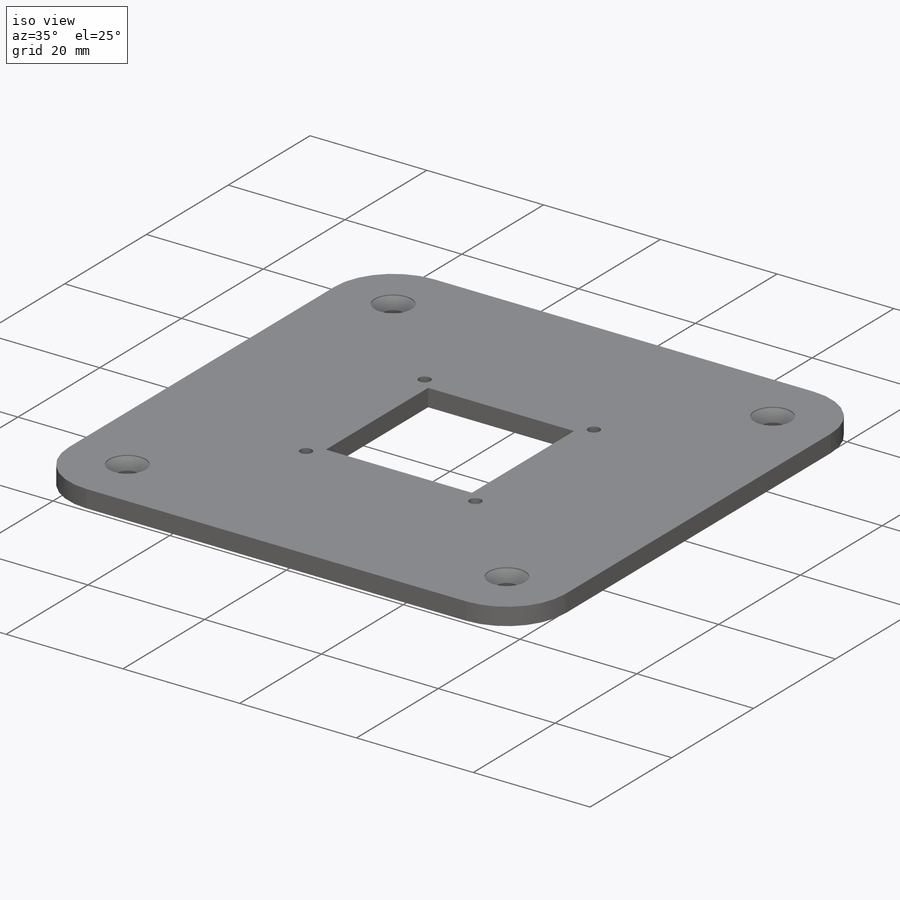
[diagram: iso view]
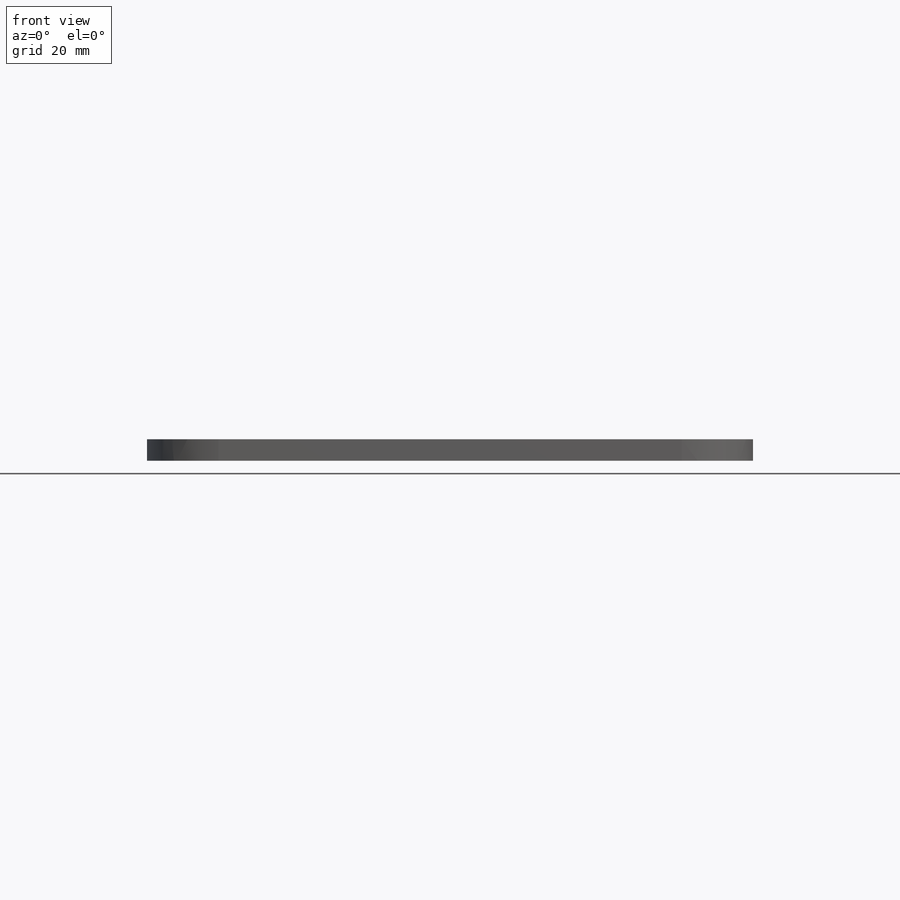
[diagram: front view]
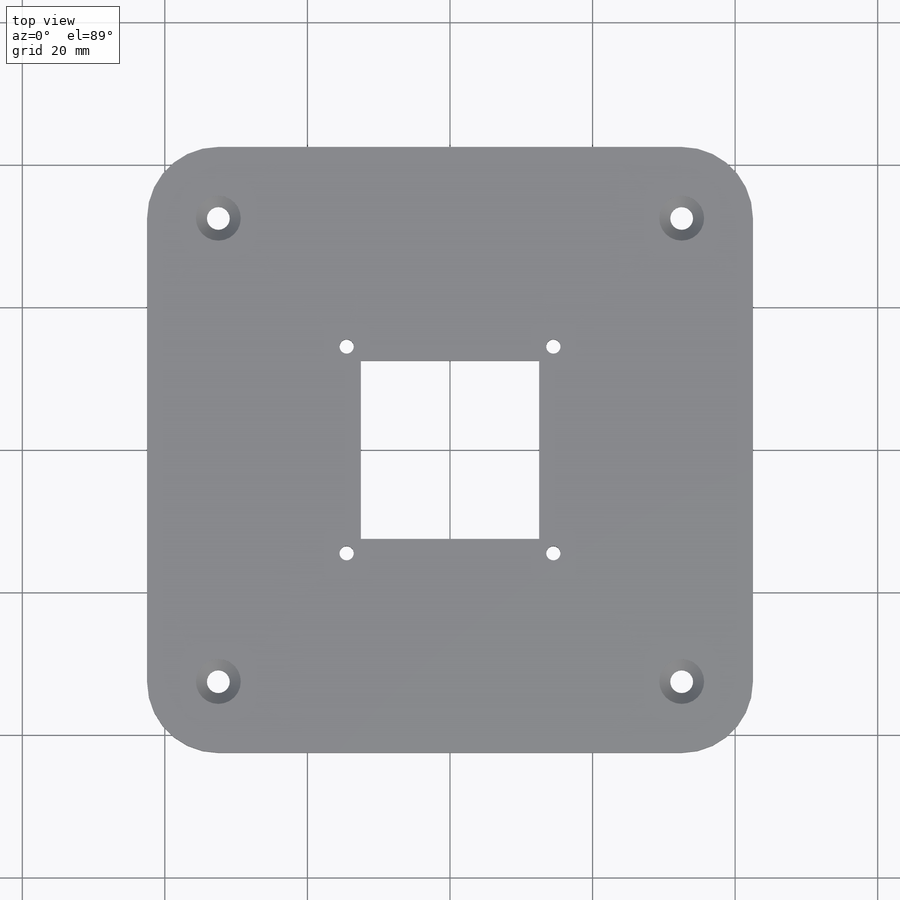
[diagram: top view]
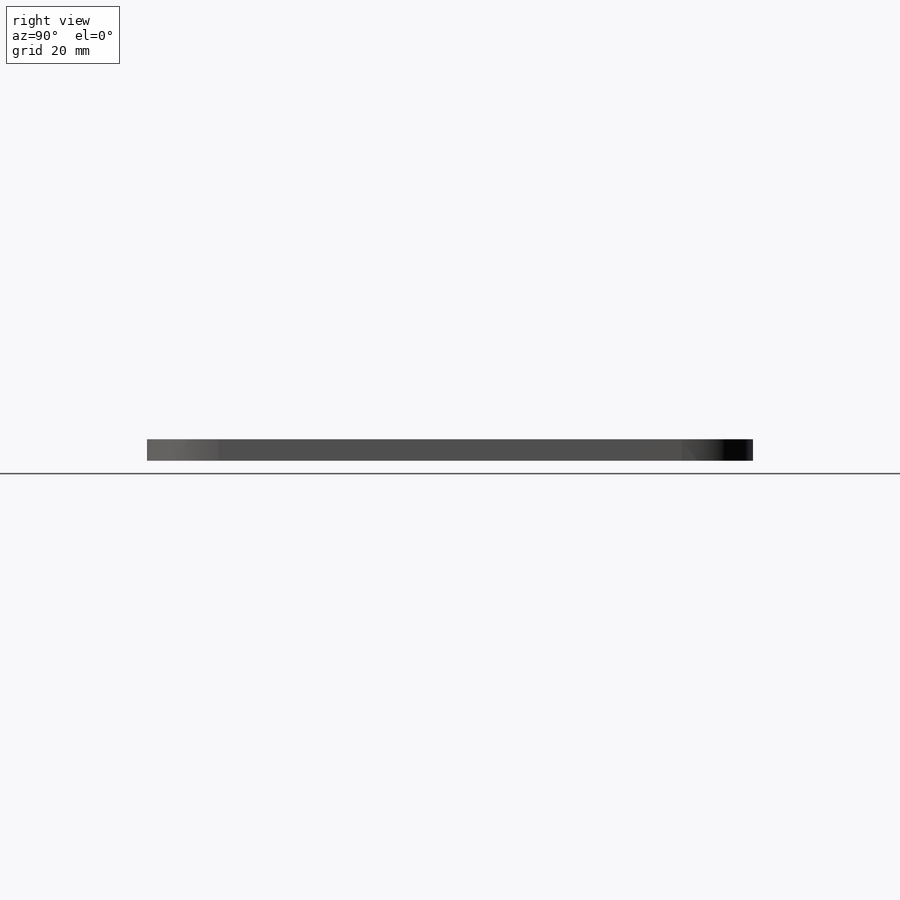
[diagram: right view]
SOLIDWORKS PART (.sldprt)
format: sldprt  version: not decoded by parser v0  size: 241,152 bytes
history: native  units: mm
features: sketch x5, cut_extrude x2, material x1, extrude x1, fillet x1, hole x1 (+13 scaffold rows collapsed)
feature tree (24):
  scaffold x13  (default folders/planes/origin — collapsed)
  material  "ABS PC"
  sketch  "Sketch1"  dims[D1=85.0mm]
  extrude  "Boss-Extrude1"  Depth=3mm
  fillet  "Fillet1"  Radius=10mm
  sketch  "Sketch3"  dims[D1=25.0mm]
  cut_extrude  "Cut-Extrude1"  [1 undecoded]
  hole  "CSK for M3 Flat Head Machine Screw1"  Diameter=3.2mm Depth=3mm
  sketch  "Sketch5"
  sketch  "Sketch4"  dims[hole-wizard template sketch: 57 standard entries collapsed; hole parameters kept: c17.Thru Hole Dia.=3.2mm c17.Thru Hole Depth=3.0mm c17.C'Sink Dia.=6.3mm c17.D4=~19.358014mm c17.C'Sink Angle=90.0deg c17.Head Clearance=0.15mm]
  sketch  "Sketch6"  dims[D1=2.0mm D3=10.0mm D2=4.0]
  cut_extrude  "Cut-Extrude2"  [1 undecoded]
decode coverage: 7 of 10 modeling features carry decoded parameters
note: ~ marks probable driven/reference dimensions
note: 2 parameter values undecoded
note: suppression state not decoded; provenance and decode notes live in map.json
